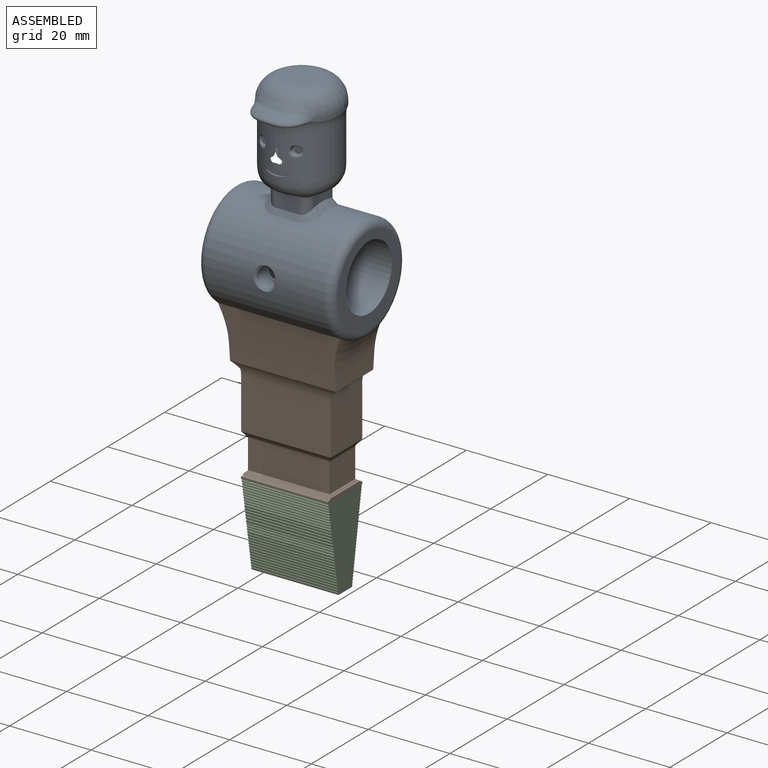
[diagram: assembled view]
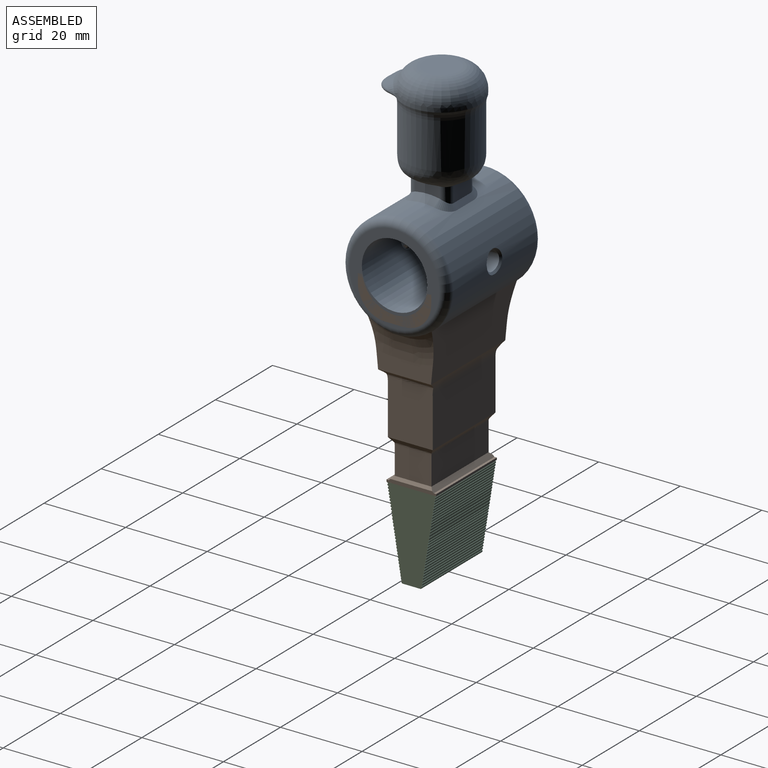
[diagram: assembled view, second angle]
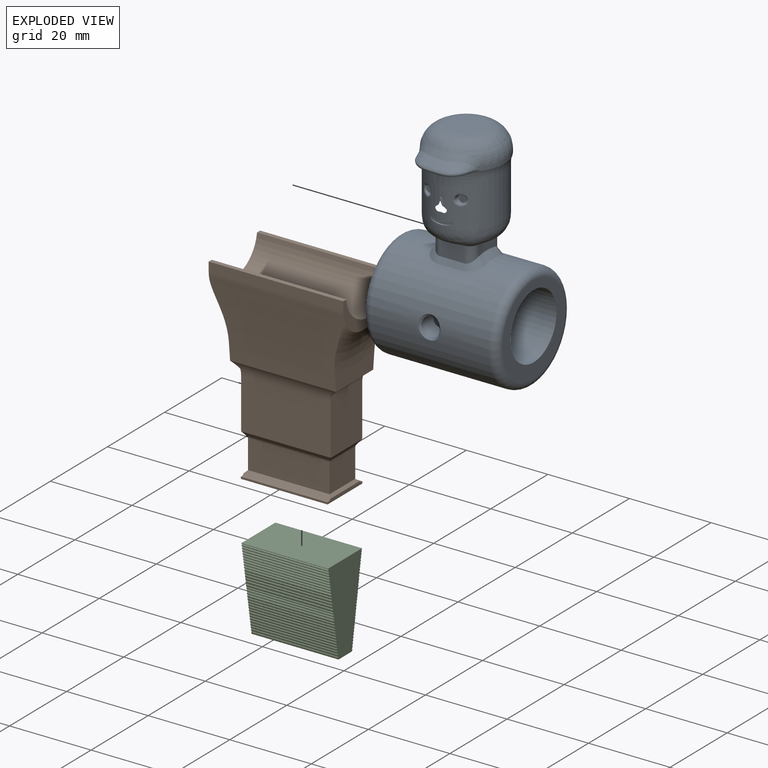
[diagram: exploded view]
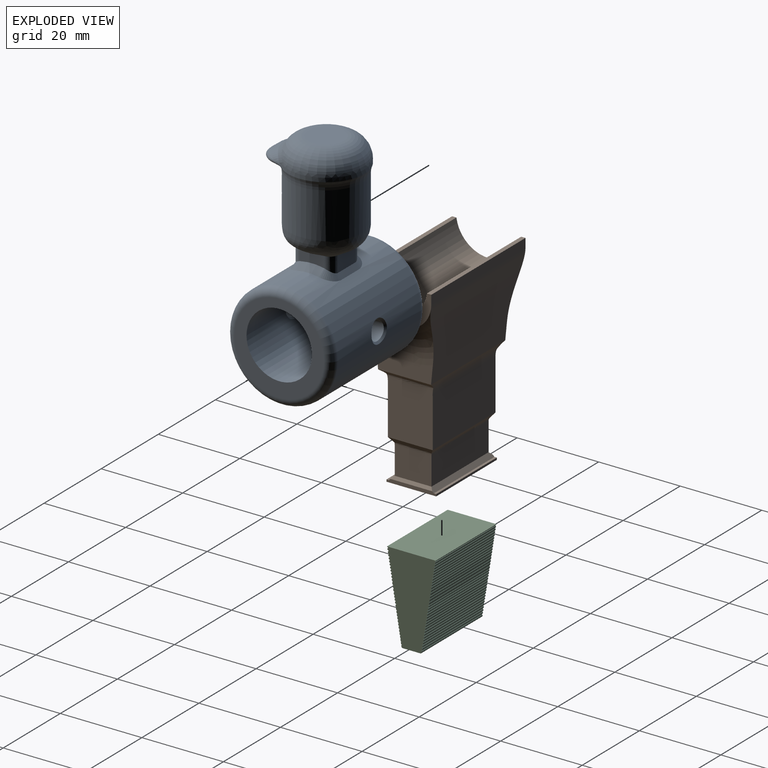
[diagram: exploded view, second angle]
ASSEMBLY  parts=3 mates=2
PART A: 71 faces, bbox 33.4x31.4x55.3 mm
  f0: cylinder r=8.96mm len=17.92mm, axis (0,0,-1), area 606.5mm2, adj f27,f28,f31,f32,f34,f45,f46,f47
  f1: cylinder r=9.37mm len=18.74mm, axis (0,0,1), area 40.8mm2, adj f2,f34,f36,f38
  f2: torus R=4.37mm, axis (0,0,1), area 336.3mm2, adj f1,f11,f37
  f3: plane 6.36x3.08mm, normal (-1,0,0), area 15.1mm2, adj f7,f10,f23,f31
  f4: plane 6.36x4.31mm, normal (0,-1,0), area 23.7mm2, adj f7,f8,f19,f32
  f5: plane 6.36x3.08mm, normal (1,0,0), area 15.1mm2, adj f8,f9,f20,f28
  f6: plane 6.36x4.31mm, normal (0,1,0), area 23.7mm2, adj f9,f10,f24,f27
  f7: cylinder r=2mm len=3.95mm, axis (0,0,1), area 10.5mm2, adj f3,f4,f21,f33
  f8: cylinder r=2mm len=3.95mm, axis (0,0,-1), area 10.5mm2, adj f4,f5,f18,f30
  f9: cylinder r=2mm len=3.95mm, axis (0,0,1), area 10.5mm2, adj f5,f6,f22,f26
  f10: cylinder r=2mm len=3.95mm, axis (0,0,-1), area 10.5mm2, adj f3,f6,f25,f29
  f11: plane 8.74x8.74mm, normal (0,0,1), area 60mm2, adj f2
  f12: plane 12.12x4.09mm, normal (0,0,-1), area 21.9mm2, adj f35,f59,f60,f61
  f13: bspline ~13.72x5.26mm, area 9.7mm2, adj f37,f60
  f14: cylinder r=13mm len=29mm, axis (1,0,0), area 2189.6mm2, adj f18,f19,f20,f21,f22,f23,f24,f25
  f15: plane 22x22mm, normal (1,0,0), area 177.8mm2, adj f17,f39
  f16: plane 22x22mm, normal (-1,0,0), area 177.8mm2, adj f17,f40
  f17: cylinder r=8.02mm len=33mm, axis (1,0,0), area 1620.8mm2, adj f15,f16,f68,f70
  f18: bspline ~3.5x3.14mm, area 7.9mm2, adj f8,f14,f19,f20
  f19: plane 6x1.34mm, normal (0,-0.85,0.53), area 9.5mm2, adj f4,f14,f18,f21
  f20: cone r=14.5mm half-angle=45deg, axis (-1,0,0), area 12.2mm2, adj f5,f14,f18,f22
  f21: bspline ~3.5x3.14mm, area 7.9mm2, adj f7,f14,f19,f23
  f22: bspline ~3.5x3.14mm, area 7.9mm2, adj f9,f14,f20,f24
  f23: cone r=13mm half-angle=45deg, axis (1,0,0), area 12.2mm2, adj f3,f14,f21,f25
  f24: plane 6x1.34mm, normal (0,0.85,0.53), area 9.5mm2, adj f6,f14,f22,f25
  f25: bspline ~3.5x3.14mm, area 7.9mm2, adj f10,f14,f23,f24
  f26: bspline ~4.49x3.54mm, area 6mm2, adj f9,f27,f28
  f27: bspline ~13.58x4.89mm, area 70.2mm2, adj f0,f6,f26,f29
  f28: bspline ~13.58x4.89mm, area 70.2mm2, adj f0,f5,f26,f30
  f29: bspline ~4.49x3.54mm, area 6mm2, adj f10,f27,f31
  f30: bspline ~4.49x3.54mm, area 6mm2, adj f8,f28,f32
  f31: bspline ~13.58x4.89mm, area 70.2mm2, adj f0,f3,f29,f33
  f32: bspline ~13.58x4.89mm, area 70.2mm2, adj f0,f4,f30,f33
  f33: bspline ~4.49x3.54mm, area 6mm2, adj f7,f31,f32
  f34: torus R=13.96mm, axis (0,0,1), area 116.3mm2, adj f0,f1,f35,f56,f57,f63,f64
  f35: torus R=10mm, axis (0,0,1), area 8.7mm2, adj f12,f34,f58,f62
  f36: bspline ~2.74x2mm, area 0.6mm2, adj f1,f37,f56
  f37: bspline ~15.52x6.37mm, area 55.1mm2, adj f2,f13,f36,f38,f57,f58,f59,f61
  f38: bspline ~2.65x2.08mm, area 0.6mm2, adj f1,f37,f64
  f39: torus R=11mm, axis (-1,0,0), area 242.3mm2, adj f14,f15
  f40: torus R=11mm, axis (-1,0,0), area 242.3mm2, adj f14,f16
  f41: cylinder r=1mm len=2mm, axis (0,-1,0), area 0mm2, adj f42,f45
  f42: plane 2.08x2.08mm, normal (0,-1,0), area 3.1mm2, adj f41,f46
  f43: cylinder r=1mm len=2mm, axis (0,-1,0), area 0mm2, adj f44,f47
  f44: plane 2.08x2.08mm, normal (0,-1,0), area 3.1mm2, adj f43,f48
  f45: bspline ~3x2.44mm, area 4.4mm2, adj f0,f41,f46
  f46: bspline ~2.53x1.1mm, area 1.8mm2, adj f0,f42,f45
  f47: bspline ~3x2.44mm, area 4.4mm2, adj f0,f43,f48
  f48: bspline ~2.53x1.1mm, area 1.8mm2, adj f0,f44,f47
  f49: revolved ~2.84x2.84mm, area 10.2mm2, adj f0,f53,f54,f55
  f50: extruded ~5.67x0.36mm, area 0mm2, adj f0,f52
  f51: extruded ~5.67x0.58mm, area 0mm2, adj f0,f52
  f52: plane 5.73x1.18mm, normal (0,-1,0), area 4mm2, adj f0,f50,f51
  f53: plane 1.26x0.73mm, normal (0,-1,0), area 0.3mm2, adj f49,f54,f55
  f54: bspline ~2.01x0.86mm, area 0.5mm2, adj f0,f49,f53,f55
  f55: bspline ~2.1x0.93mm, area 0.6mm2, adj f0,f49,f53,f54
  f56: bspline ~1.55x1.14mm, area 0.3mm2, adj f34,f36,f57
  f57: bspline ~0.68x0.62mm, area 0.3mm2, adj f34,f37,f56,f58
  f58: bspline ~2.33x1.18mm, area 1.2mm2, adj f35,f37,f57,f59
  f59: bspline ~2.55x1.39mm, area 0.8mm2, adj f12,f37,f58,f60
  f60: bspline ~14.34x5.48mm, area 18mm2, adj f12,f13,f59,f61
  f61: bspline ~2.15x1.43mm, area 0.7mm2, adj f12,f37,f60,f62
  f62: bspline ~2.48x1.31mm, area 1.3mm2, adj f35,f37,f61,f63
  f63: bspline ~0.84x0.84mm, area 0.3mm2, adj f34,f37,f62,f64
  f64: bspline ~1.37x1.04mm, area 0.3mm2, adj f34,f38,f63
  f65: cylinder r=2.25mm len=4.5mm, axis (0,-1,0), area 61.3mm2, adj f67,f68
  f66: cylinder r=2.25mm len=4.5mm, axis (0,-1,0), area 59.2mm2, adj f69,f70
  f67: bspline ~5.59x5.4mm, area 10.6mm2, adj f14,f65
  f68: bspline ~5.4x5.11mm, area 9mm2, adj f17,f65
  f69: bspline ~5.59x5.4mm, area 10.6mm2, adj f14,f66
  f70: bspline ~5.81x5.37mm, area 13.5mm2, adj f17,f66
PART B: 46 faces, bbox 34.2x60x47.8 mm
  f0: plane 18x8.96mm, normal (-1,0,0), area 58.6mm2, adj f1,f3,f4,f34,f35,f41,f42,f43
  f1: plane 33x2.2mm, normal (0,-1,0), area 72.6mm2, adj f0,f2,f34,f45
  f2: plane 18x8.96mm, normal (1,0,0), area 58.6mm2, adj f1,f3,f4,f34,f35,f38,f39,f40
  f3: plane 33x2.2mm, normal (0,1,0), area 72.6mm2, adj f0,f2,f35,f44
  f4: cylinder r=8.02mm len=33mm, axis (1,0,0), area 757mm2, adj f0,f2,f44,f45
  f5: plane 21.25x0.6mm, normal (0,0,1), area 12.8mm2, adj f23,f24,f26,f30
  f6: plane 13.89x4.47mm, normal (-1,0,0), area 52.4mm2, adj f19,f36,f37,f41,f42,f43
  f7: plane 13.89x4.47mm, normal (1,0,0), area 52.4mm2, adj f18,f36,f37,f38,f39,f40
  f8: plane 22.17x12.67mm, normal (0,1,0), area 275.4mm2, adj f9,f11,f17,f18,f19,f33
  f9: plane 11.52x11mm, normal (-1,0,0), area 126.7mm2, adj f8,f10,f19,f21
  f10: plane 22.17x12.67mm, normal (0,-1,0), area 275.4mm2, adj f9,f11,f16,f18,f19,f32
  f11: plane 11.52x11mm, normal (1,0,0), area 126.7mm2, adj f8,f10,f18,f20
  f12: plane 20x5.71mm, normal (0,1,0), area 114.1mm2, adj f13,f15,f17,f30
  f13: plane 9x5.71mm, normal (-1,0,0), area 51.3mm2, adj f12,f14,f21,f31
  f14: plane 20x5.71mm, normal (0,-1,0), area 114.1mm2, adj f13,f15,f16,f29
  f15: plane 9x5.71mm, normal (1,0,0), area 51.3mm2, adj f12,f14,f20,f28
  f16: bspline ~22x3mm, area 67.4mm2, adj f10,f14,f20,f21
  f17: bspline ~22x3mm, area 67.3mm2, adj f8,f12,f20,f21
  f18: bspline ~13.16x4mm, area 57.1mm2, adj f7,f8,f10,f11,f32,f33
  f19: bspline ~13.16x4mm, area 57.1mm2, adj f6,f8,f9,f10,f32,f33
  f20: bspline ~12.1x3mm, area 32.8mm2, adj f11,f15,f16,f17
  f21: bspline ~12.1x3mm, area 32.9mm2, adj f9,f13,f16,f17
  f22: plane 21.25x0.6mm, normal (0,0,1), area 12.8mm2, adj f24,f25,f26,f29
  f23: plane 21.25x0.5mm, normal (0,1,0), area 10.6mm2, adj f5,f24,f26,f27
  f24: plane 12.2x0.88mm, normal (-1,0,0), area 10.1mm2, adj f5,f22,f23,f25,f27,f29,f30,f31
  f25: plane 21.25x0.5mm, normal (0,-1,0), area 10.6mm2, adj f22,f24,f26,f27
  f26: plane 12.2x0.88mm, normal (1,0,0), area 10.1mm2, adj f5,f22,f23,f25,f27,f28,f29,f30
  f27: plane 21.25x12.2mm, normal (0,0,-1), area 259.3mm2, adj f23,f24,f25,f26
  f28: plane 10.25x0.63mm, normal (0.71,0,0.71), area 8.5mm2, adj f15,f26,f29,f30
  f29: plane 21.25x1mm, normal (0,-0.71,0.71), area 29.5mm2, adj f14,f22,f24,f26,f28,f31
  f30: plane 21.25x1mm, normal (0,0.71,0.71), area 29.5mm2, adj f5,f12,f24,f26,f28,f31
  f31: plane 10.25x0.63mm, normal (-0.71,0,0.71), area 8.5mm2, adj f13,f24,f29,f30
  f32: cylinder r=5mm len=26mm, axis (1,0,0), area 77.2mm2, adj f10,f18,f19,f37
  f33: cylinder r=5mm len=26mm, axis (1,0,0), area 77.2mm2, adj f8,f18,f19,f36
  f34: cylinder r=6.76mm len=33mm, axis (-1,0,0), area 37.1mm2, adj f0,f1,f2,f37
  f35: cylinder r=6.76mm len=33mm, axis (1,0,0), area 37.1mm2, adj f0,f2,f3,f36
  f36: cylinder r=247.12mm len=33mm, axis (-1,0,0), area 539.6mm2, adj f6,f7,f33,f35,f40,f43
  f37: cylinder r=247.12mm len=33mm, axis (1,0,0), area 539.6mm2, adj f6,f7,f32,f34,f38,f41
  f38: torus R=16.02mm, axis (1,0,0), area 59.3mm2, adj f2,f7,f37,f39
  f39: cylinder r=14mm len=9.26mm, axis (0,1,0), area 45.3mm2, adj f2,f7,f38,f40
  f40: torus R=16.02mm, axis (1,0,0), area 59.3mm2, adj f2,f7,f36,f39
  f41: torus R=16.02mm, axis (1,0,0), area 59.3mm2, adj f0,f6,f37,f42
  f42: cylinder r=14mm len=9.26mm, axis (0,1,0), area 45.3mm2, adj f0,f6,f41,f43
  f43: torus R=16.02mm, axis (1,0,0), area 59.3mm2, adj f0,f6,f36,f42
  f44: plane 33x1.06mm, normal (0,0,1), area 34.8mm2, adj f0,f2,f3,f4
  f45: plane 33x1.06mm, normal (0,0,1), area 34.8mm2, adj f0,f1,f2,f4
PART C: 202 faces, bbox 21.3x11.9x21.5 mm
  f0: plane 21.54x11.94mm, normal (-1,0,0), area 179.2mm2, adj f2,f3,f4,f5,f6,f7,f8,f9
  f1: plane 21.54x11.94mm, normal (1,0,0), area 179.2mm2, adj f2,f3,f4,f5,f6,f7,f8,f9
  f2: plane 21.25x11.94mm, normal (0,0,1), area 253.7mm2, adj f0,f1,f138,f192
  f3: plane 21.25x0.23mm, normal (0,0.47,-0.88), area 5.6mm2, adj f0,f1,f4,f198
  f4: plane 21.25x0.21mm, normal (0,0.77,0.64), area 5.9mm2, adj f0,f1,f3,f167
  f5: plane 21.25x0.19mm, normal (0,0.77,0.64), area 5.3mm2, adj f0,f1,f6,f198
  f6: plane 21.25x0.21mm, normal (0,0.52,-0.85), area 5.3mm2, adj f0,f1,f5,f197
  f7: plane 21.25x0.19mm, normal (0,0.77,0.64), area 5.3mm2, adj f0,f1,f8,f197
  f8: plane 21.25x0.21mm, normal (0,0.52,-0.85), area 5.3mm2, adj f0,f1,f7,f196
  f9: plane 21.25x0.21mm, normal (0,0.77,0.64), area 5.8mm2, adj f0,f1,f10,f196
  f10: plane 21.25x0.23mm, normal (0,0.52,-0.85), area 5.8mm2, adj f0,f1,f9,f195
  f11: plane 21.25x0.19mm, normal (0,0.77,0.64), area 5.2mm2, adj f0,f1,f12,f195
  f12: plane 21.25x0.21mm, normal (0,0.52,-0.85), area 5.2mm2, adj f0,f1,f11,f194
  f13: plane 21.25x0.18mm, normal (0,0.77,0.64), area 5.1mm2, adj f0,f1,f14,f194
  f14: plane 21.25x0.2mm, normal (0,0.52,-0.85), area 5mm2, adj f0,f1,f13,f193
  f15: plane 21.25x0.16mm, normal (0,0.73,0.69), area 4.8mm2, adj f0,f1,f16,f193
  f16: plane 21.25x0.2mm, normal (0,0.52,-0.85), area 5mm2, adj f0,f1,f15,f192
  f17: plane 21.25x0.22mm, normal (0,0.64,-0.77), area 6.2mm2, adj f0,f1,f191,f200
  f18: plane 21.25x0.2mm, normal (0,0.77,0.64), area 5.5mm2, adj f0,f1,f19,f191
  f19: plane 21.25x0.23mm, normal (0,0.64,-0.77), area 6.4mm2, adj f0,f1,f18,f190
  f20: plane 21.25x0.2mm, normal (0,0.77,0.64), area 5.4mm2, adj f0,f1,f21,f190
  f21: plane 21.25x0.23mm, normal (0,0.64,-0.77), area 6.3mm2, adj f0,f1,f20,f189
  f22: plane 21.25x0.19mm, normal (0,0.77,0.64), area 5.3mm2, adj f0,f1,f23,f189
  f23: plane 21.25x0.22mm, normal (0,0.64,-0.77), area 6.1mm2, adj f0,f1,f22,f188
  f24: plane 21.25x0.19mm, normal (0,0.77,0.64), area 5.2mm2, adj f0,f1,f25,f188
  f25: plane 21.25x0.22mm, normal (0,0.64,-0.77), area 6.1mm2, adj f0,f1,f24,f187
  f26: plane 21.25x0.19mm, normal (0,0.77,0.64), area 5.2mm2, adj f0,f1,f27,f187
  f27: plane 21.25x0.22mm, normal (0,0.64,-0.77), area 6mm2, adj f0,f1,f26,f186
  f28: plane 21.25x0.2mm, normal (0,0.77,0.64), area 5.4mm2, adj f0,f1,f29,f186
  f29: plane 21.25x0.23mm, normal (0,0.64,-0.77), area 6.3mm2, adj f0,f1,f28,f185
  f30: plane 21.25x0.18mm, normal (0,0.77,0.64), area 5mm2, adj f0,f1,f31,f185
  f31: plane 21.25x0.21mm, normal (0,0.64,-0.77), area 5.8mm2, adj f0,f1,f30,f184
  f32: plane 21.25x0.2mm, normal (0,0.77,0.64), area 5.5mm2, adj f0,f1,f33,f184
  f33: plane 21.25x0.23mm, normal (0,0.64,-0.77), area 6.4mm2, adj f0,f1,f32,f183
  f34: plane 21.25x0.18mm, normal (0,0.77,0.64), area 4.9mm2, adj f0,f1,f35,f183
  f35: plane 21.25x0.2mm, normal (0,0.64,-0.77), area 5.6mm2, adj f0,f1,f34,f182
  f36: plane 21.25x0.18mm, normal (0,0.77,0.64), area 4.9mm2, adj f0,f1,f37,f182
  f37: plane 21.25x0.2mm, normal (0,0.64,-0.77), area 5.7mm2, adj f0,f1,f36,f181
  f38: plane 21.25x0.18mm, normal (0,0.77,0.64), area 5mm2, adj f0,f1,f39,f181
  f39: plane 21.25x0.21mm, normal (0,0.64,-0.77), area 5.7mm2, adj f0,f1,f38,f180
  f40: plane 21.25x0.17mm, normal (0,0.77,0.64), area 4.8mm2, adj f0,f1,f41,f180
  f41: plane 21.25x0.2mm, normal (0,0.64,-0.77), area 5.6mm2, adj f0,f1,f40,f179
  f42: plane 21.25x0.17mm, normal (0,0.77,0.64), area 4.7mm2, adj f0,f1,f43,f179
  f43: plane 21.25x0.2mm, normal (0,0.64,-0.77), area 5.5mm2, adj f0,f1,f42,f178
  f44: plane 21.25x0.22mm, normal (0,0.77,0.64), area 6.1mm2, adj f0,f1,f45,f178
  f45: plane 21.25x0.24mm, normal (0,0.52,-0.85), area 6.1mm2, adj f0,f1,f44,f177
  f46: plane 21.25x0.22mm, normal (0,0.77,0.64), area 6mm2, adj f0,f1,f47,f177
  f47: plane 21.25x0.24mm, normal (0,0.52,-0.85), area 6mm2, adj f0,f1,f46,f176
  f48: plane 21.25x0.21mm, normal (0,0.77,0.64), area 5.8mm2, adj f0,f1,f49,f176
  f49: plane 21.25x0.23mm, normal (0,0.52,-0.85), area 5.7mm2, adj f0,f1,f48,f175
  f50: plane 21.25x0.16mm, normal (0,0.77,0.64), area 4.5mm2, adj f0,f1,f51,f175
  f51: plane 21.25x0.19mm, normal (0,0.64,-0.77), area 5.2mm2, adj f0,f1,f50,f174
  f52: plane 21.25x0.21mm, normal (0,0.85,0.52), area 5.2mm2, adj f0,f1,f53,f174
  f53: plane 21.25x0.19mm, normal (0,0.64,-0.77), area 5.2mm2, adj f0,f1,f52,f173
  f54: plane 21.25x0.2mm, normal (0,0.85,0.52), area 5mm2, adj f0,f1,f55,f173
  f55: plane 21.25x0.18mm, normal (0,0.64,-0.77), area 5mm2, adj f0,f1,f54,f172
  f56: plane 21.25x0.16mm, normal (0,0.77,0.64), area 4.4mm2, adj f0,f1,f57,f172
  f57: plane 21.25x0.18mm, normal (0,0.64,-0.77), area 5.1mm2, adj f0,f1,f56,f171
  f58: plane 21.25x0.2mm, normal (0,0.85,0.52), area 5mm2, adj f0,f1,f59,f171
  f59: plane 21.25x0.18mm, normal (0,0.64,-0.77), area 4.9mm2, adj f0,f1,f58,f170
  f60: plane 21.25x0.18mm, normal (0,0.64,-0.77), area 4.8mm2, adj f0,f1,f61,f169
  f61: plane 21.25x0.15mm, normal (0,0.77,0.64), area 4.2mm2, adj f0,f1,f60,f170
  f62: plane 21.25x0.2mm, normal (0,0.77,0.64), area 5.5mm2, adj f0,f1,f63,f169
  f63: plane 21.25x0.22mm, normal (0,0.52,-0.85), area 5.5mm2, adj f0,f1,f62,f168
  f64: plane 21.25x0.2mm, normal (0,0.77,0.64), area 5.5mm2, adj f0,f1,f65,f168
  f65: plane 21.25x0.22mm, normal (0,0.52,-0.85), area 5.5mm2, adj f0,f1,f64,f166
  f66: plane 21.25x0.22mm, normal (0,0.52,-0.85), area 5.6mm2, adj f0,f1,f67,f167
  f67: plane 21.25x0.2mm, normal (0,0.77,0.64), area 5.6mm2, adj f0,f1,f66,f166
  f68: plane 21.25x0.25mm, normal (0,-0.77,0.64), area 6.8mm2, adj f0,f1,f69,f165
  f69: plane 21.25x0.27mm, normal (0,-0.52,-0.85), area 6.8mm2, adj f0,f1,f68,f134
  f70: plane 21.25x0.29mm, normal (0,-0.47,-0.88), area 6.9mm2, adj f0,f1,f71,f165
  f71: plane 21.25x0.26mm, normal (0,-0.77,0.64), area 7.2mm2, adj f0,f1,f70,f164
  f72: plane 21.25x0.28mm, normal (0,-0.52,-0.85), area 6.9mm2, adj f0,f1,f73,f164
  f73: plane 21.25x0.25mm, normal (0,-0.77,0.64), area 6.9mm2, adj f0,f1,f72,f163
  f74: plane 21.25x0.27mm, normal (0,-0.52,-0.85), area 6.7mm2, adj f0,f1,f75,f163
  f75: plane 21.25x0.24mm, normal (0,-0.77,0.64), area 6.6mm2, adj f0,f1,f74,f162
  f76: plane 21.25x0.27mm, normal (0,-0.52,-0.85), area 6.6mm2, adj f0,f1,f77,f162
  f77: plane 21.25x0.24mm, normal (0,-0.77,0.64), area 6.6mm2, adj f0,f1,f76,f161
  f78: plane 21.25x0.22mm, normal (0,-0.64,-0.77), area 6mm2, adj f0,f1,f79,f161
  f79: plane 21.25x0.19mm, normal (0,-0.77,0.64), area 5.1mm2, adj f0,f1,f78,f160
  f80: plane 21.25x0.21mm, normal (0,-0.64,-0.77), area 6mm2, adj f0,f1,f81,f160
  f81: plane 21.25x0.24mm, normal (0,-0.85,0.52), area 5.9mm2, adj f0,f1,f80,f159
  f82: plane 21.25x0.22mm, normal (0,-0.64,-0.77), area 6mm2, adj f0,f1,f83,f159
  f83: plane 21.25x0.18mm, normal (0,-0.77,0.64), area 5.1mm2, adj f0,f1,f82,f158
  f84: plane 21.25x0.21mm, normal (0,-0.64,-0.77), area 5.7mm2, adj f0,f1,f85,f158
  f85: plane 21.25x0.23mm, normal (0,-0.85,0.52), area 5.7mm2, adj f0,f1,f84,f157
  f86: plane 21.25x0.21mm, normal (0,-0.64,-0.77), area 5.7mm2, adj f0,f1,f87,f157
  f87: plane 21.25x0.23mm, normal (0,-0.85,0.52), area 5.7mm2, adj f0,f1,f86,f156
  f88: plane 21.25x0.2mm, normal (0,-0.64,-0.77), area 5.6mm2, adj f0,f1,f89,f156
  f89: plane 21.25x0.17mm, normal (0,-0.77,0.64), area 4.8mm2, adj f0,f1,f88,f155
  f90: plane 21.25x0.24mm, normal (0,-0.52,-0.85), area 6mm2, adj f0,f1,f91,f155
  f91: plane 21.25x0.22mm, normal (0,-0.77,0.64), area 6mm2, adj f0,f1,f90,f154
  f92: plane 21.25x0.25mm, normal (0,-0.52,-0.85), area 6.2mm2, adj f0,f1,f93,f154
  f93: plane 21.25x0.22mm, normal (0,-0.77,0.64), area 6.1mm2, adj f0,f1,f92,f153
  f94: plane 21.25x0.25mm, normal (0,-0.52,-0.85), area 6.1mm2, adj f0,f1,f95,f153
  f95: plane 21.25x0.22mm, normal (0,-0.77,0.64), area 6.1mm2, adj f0,f1,f94,f152
  f96: plane 21.25x0.2mm, normal (0,-0.64,-0.77), area 5.4mm2, adj f0,f1,f97,f152
  f97: plane 21.25x0.17mm, normal (0,-0.77,0.64), area 4.6mm2, adj f0,f1,f96,f151
  f98: plane 21.25x0.19mm, normal (0,-0.64,-0.77), area 5.4mm2, adj f0,f1,f99,f151
  f99: plane 21.25x0.17mm, normal (0,-0.77,0.64), area 4.6mm2, adj f0,f1,f98,f150
  f100: plane 21.25x0.19mm, normal (0,-0.64,-0.77), area 5.4mm2, adj f0,f1,f101,f150
  f101: plane 21.25x0.17mm, normal (0,-0.77,0.64), area 4.6mm2, adj f0,f1,f100,f149
  f102: plane 21.25x0.19mm, normal (0,-0.64,-0.77), area 5.2mm2, adj f0,f1,f103,f149
  f103: plane 21.25x0.16mm, normal (0,-0.77,0.64), area 4.5mm2, adj f0,f1,f102,f148
  f104: plane 21.25x0.18mm, normal (0,-0.64,-0.77), area 5mm2, adj f0,f1,f105,f148
  f105: plane 21.25x0.16mm, normal (0,-0.77,0.64), area 4.3mm2, adj f0,f1,f104,f147
  f106: plane 21.25x0.2mm, normal (0,-0.64,-0.77), area 5.6mm2, adj f0,f1,f107,f147
  f107: plane 21.25x0.17mm, normal (0,-0.77,0.64), area 4.8mm2, adj f0,f1,f106,f146
  f108: plane 21.25x0.18mm, normal (0,-0.64,-0.77), area 4.9mm2, adj f0,f1,f109,f146
  f109: plane 21.25x0.15mm, normal (0,-0.77,0.64), area 4.2mm2, adj f0,f1,f108,f145
  f110: plane 21.25x0.19mm, normal (0,-0.64,-0.77), area 5.3mm2, adj f0,f1,f111,f145
  f111: plane 21.25x0.16mm, normal (0,-0.77,0.64), area 4.5mm2, adj f0,f1,f110,f144
  f112: plane 21.25x0.18mm, normal (0,-0.64,-0.77), area 4.9mm2, adj f0,f1,f113,f144
  f113: plane 21.25x0.15mm, normal (0,-0.77,0.64), area 4.2mm2, adj f0,f1,f112,f143
  f114: plane 21.25x0.17mm, normal (0,-0.64,-0.77), area 4.8mm2, adj f0,f1,f115,f143
  f115: plane 21.25x0.15mm, normal (0,-0.77,0.64), area 4.1mm2, adj f0,f1,f114,f142
  f116: plane 21.25x0.17mm, normal (0,-0.64,-0.77), area 4.8mm2, adj f0,f1,f117,f142
  f117: plane 21.25x0.15mm, normal (0,-0.77,0.64), area 4.1mm2, adj f0,f1,f116,f141
  f118: plane 21.25x0.17mm, normal (0,-0.64,-0.77), area 4.7mm2, adj f0,f1,f119,f141
  f119: plane 21.25x0.15mm, normal (0,-0.77,0.64), area 4.1mm2, adj f0,f1,f118,f140
  f120: plane 21.25x0.17mm, normal (0,-0.64,-0.77), area 4.7mm2, adj f0,f1,f121,f140
  f121: plane 21.25x0.15mm, normal (0,-0.77,0.64), area 4mm2, adj f0,f1,f120,f139
  f122: plane 21.25x0.16mm, normal (0,-0.64,-0.77), area 4.5mm2, adj f0,f1,f139,f201
  f123: plane 21.25x0.29mm, normal (0,-0.52,-0.85), area 7.1mm2, adj f0,f1,f124,f138
  f124: plane 21.25x0.23mm, normal (0,-0.73,0.69), area 6.8mm2, adj f0,f1,f123,f137
  f125: plane 21.25x0.28mm, normal (0,-0.52,-0.85), area 7mm2, adj f0,f1,f126,f137
  f126: plane 21.25x0.25mm, normal (0,-0.77,0.64), area 7mm2, adj f0,f1,f125,f136
  f127: plane 21.25x0.28mm, normal (0,-0.52,-0.85), area 7mm2, adj f0,f1,f128,f136
  f128: plane 21.25x0.25mm, normal (0,-0.77,0.64), area 7mm2, adj f0,f1,f127,f135
  f129: plane 21.25x0.3mm, normal (0,-0.52,-0.85), area 7.6mm2, adj f0,f1,f130,f135
  f130: plane 21.25x0.27mm, normal (0,-0.77,0.64), area 7.5mm2, adj f0,f1,f129,f133
  f131: plane 21.25x0.25mm, normal (0,-0.77,0.64), area 6.9mm2, adj f0,f1,f132,f134
  f132: plane 21.25x0.28mm, normal (0,-0.52,-0.85), area 7mm2, adj f0,f1,f131,f133
  f133: plane 21.25x0.23mm, normal (0,-0.99,-0.16), area 4.9mm2, adj f0,f1,f130,f132
  f134: plane 21.25x0.23mm, normal (0,-0.99,-0.16), area 4.9mm2, adj f0,f1,f69,f131
  f135: plane 21.25x0.22mm, normal (0,-0.99,-0.16), area 4.8mm2, adj f0,f1,f128,f129
  f136: plane 21.25x0.22mm, normal (0,-0.99,-0.16), area 4.7mm2, adj f0,f1,f126,f127
  f137: plane 21.25x0.2mm, normal (0,-0.99,-0.16), area 4.4mm2, adj f0,f1,f124,f125
  f138: plane 21.25x0.09mm, normal (0,-0.99,-0.16), area 1.9mm2, adj f0,f1,f2,f123
  f139: plane 21.25x0.38mm, normal (0,-0.99,-0.16), area 8.1mm2, adj f0,f1,f121,f122
  f140: plane 21.25x0.37mm, normal (0,-0.99,-0.16), area 8mm2, adj f0,f1,f119,f120
  f141: plane 21.25x0.37mm, normal (0,-0.99,-0.16), area 7.9mm2, adj f0,f1,f117,f118
  f142: plane 21.25x0.36mm, normal (0,-0.99,-0.16), area 7.8mm2, adj f0,f1,f115,f116
  f143: plane 21.25x0.36mm, normal (0,-0.99,-0.16), area 7.7mm2, adj f0,f1,f113,f114
  f144: plane 21.25x0.36mm, normal (0,-0.99,-0.16), area 7.7mm2, adj f0,f1,f111,f112
  f145: plane 21.25x0.35mm, normal (0,-0.99,-0.16), area 7.6mm2, adj f0,f1,f109,f110
  f146: plane 21.25x0.35mm, normal (0,-0.99,-0.16), area 7.5mm2, adj f0,f1,f107,f108
  f147: plane 21.25x0.34mm, normal (0,-0.99,-0.16), area 7.4mm2, adj f0,f1,f105,f106
  f148: plane 21.25x0.34mm, normal (0,-0.99,-0.16), area 7.3mm2, adj f0,f1,f103,f104
  f149: plane 21.25x0.34mm, normal (0,-0.99,-0.16), area 7.2mm2, adj f0,f1,f101,f102
  f150: plane 21.25x0.33mm, normal (0,-0.99,-0.16), area 7.2mm2, adj f0,f1,f99,f100
  f151: plane 21.25x0.33mm, normal (0,-0.99,-0.16), area 7.1mm2, adj f0,f1,f97,f98
  f152: plane 21.25x0.32mm, normal (0,-0.99,-0.16), area 7mm2, adj f0,f1,f95,f96
  f153: plane 21.25x0.27mm, normal (0,-0.99,-0.16), area 5.9mm2, adj f0,f1,f93,f94
  f154: plane 21.25x0.27mm, normal (0,-0.99,-0.16), area 5.8mm2, adj f0,f1,f91,f92
  f155: plane 21.25x0.27mm, normal (0,-0.99,-0.16), area 5.7mm2, adj f0,f1,f89,f90
  f156: plane 21.25x0.36mm, normal (0,-0.99,-0.16), area 7.6mm2, adj f0,f1,f87,f88
  f157: plane 21.25x0.35mm, normal (0,-0.99,-0.16), area 7.5mm2, adj f0,f1,f85,f86
  f158: plane 21.25x0.3mm, normal (0,-0.99,-0.16), area 6.5mm2, adj f0,f1,f83,f84
  f159: plane 21.25x0.34mm, normal (0,-0.99,-0.16), area 7.3mm2, adj f0,f1,f81,f82
  f160: plane 21.25x0.29mm, normal (0,-0.99,-0.16), area 6.3mm2, adj f0,f1,f79,f80
  f161: plane 21.25x0.29mm, normal (0,-0.99,-0.16), area 6.2mm2, adj f0,f1,f77,f78
  f162: plane 21.25x0.24mm, normal (0,-0.99,-0.16), area 5.2mm2, adj f0,f1,f75,f76
  f163: plane 21.25x0.24mm, normal (0,-0.99,-0.16), area 5.2mm2, adj f0,f1,f73,f74
  f164: plane 21.25x0.24mm, normal (0,-0.99,-0.16), area 5.1mm2, adj f0,f1,f71,f72
  f165: plane 21.25x0.22mm, normal (0,-0.99,-0.16), area 4.7mm2, adj f0,f1,f68,f70
  f166: plane 21.25x0.32mm, normal (0,0.99,-0.16), area 6.8mm2, adj f0,f1,f65,f67
  f167: plane 21.25x0.32mm, normal (0,0.99,-0.16), area 6.9mm2, adj f0,f1,f4,f66
  f168: plane 21.25x0.31mm, normal (0,0.99,-0.16), area 6.7mm2, adj f0,f1,f63,f64
  f169: plane 21.25x0.36mm, normal (0,0.99,-0.16), area 7.8mm2, adj f0,f1,f60,f62
  f170: plane 21.25x0.36mm, normal (0,0.99,-0.16), area 7.7mm2, adj f0,f1,f59,f61
  f171: plane 21.25x0.41mm, normal (0,0.99,-0.16), area 8.7mm2, adj f0,f1,f57,f58
  f172: plane 21.25x0.35mm, normal (0,0.99,-0.16), area 7.5mm2, adj f0,f1,f55,f56
  f173: plane 21.25x0.39mm, normal (0,0.99,-0.16), area 8.5mm2, adj f0,f1,f53,f54
  f174: plane 21.25x0.39mm, normal (0,0.99,-0.16), area 8.4mm2, adj f0,f1,f51,f52
  f175: plane 21.25x0.29mm, normal (0,0.99,-0.16), area 6.1mm2, adj f0,f1,f49,f50
  f176: plane 21.25x0.28mm, normal (0,0.99,-0.16), area 6.1mm2, adj f0,f1,f47,f48
  f177: plane 21.25x0.28mm, normal (0,0.99,-0.16), area 6mm2, adj f0,f1,f45,f46
  f178: plane 21.25x0.32mm, normal (0,0.99,-0.16), area 6.9mm2, adj f0,f1,f43,f44
  f179: plane 21.25x0.32mm, normal (0,0.99,-0.16), area 6.9mm2, adj f0,f1,f41,f42
  f180: plane 21.25x0.31mm, normal (0,0.99,-0.16), area 6.8mm2, adj f0,f1,f39,f40
  f181: plane 21.25x0.31mm, normal (0,0.99,-0.16), area 6.7mm2, adj f0,f1,f37,f38
  f182: plane 21.25x0.31mm, normal (0,0.99,-0.16), area 6.6mm2, adj f0,f1,f35,f36
  f183: plane 21.25x0.3mm, normal (0,0.99,-0.16), area 6.5mm2, adj f0,f1,f33,f34
  f184: plane 21.25x0.3mm, normal (0,0.99,-0.16), area 6.4mm2, adj f0,f1,f31,f32
  f185: plane 21.25x0.29mm, normal (0,0.99,-0.16), area 6.3mm2, adj f0,f1,f29,f30
  f186: plane 21.25x0.29mm, normal (0,0.99,-0.16), area 6.2mm2, adj f0,f1,f27,f28
  f187: plane 21.25x0.29mm, normal (0,0.99,-0.16), area 6.1mm2, adj f0,f1,f25,f26
  f188: plane 21.25x0.28mm, normal (0,0.99,-0.16), area 6.1mm2, adj f0,f1,f23,f24
  f189: plane 21.25x0.28mm, normal (0,0.99,-0.16), area 6mm2, adj f0,f1,f21,f22
  f190: plane 21.25x0.27mm, normal (0,0.99,-0.16), area 5.9mm2, adj f0,f1,f19,f20
  f191: plane 21.25x0.27mm, normal (0,0.99,-0.16), area 5.8mm2, adj f0,f1,f17,f18
  f192: plane 21.25x0.14mm, normal (0,0.99,-0.16), area 3.1mm2, adj f0,f1,f2,f16
  f193: plane 21.25x0.32mm, normal (0,0.99,-0.16), area 6.9mm2, adj f0,f1,f14,f15
  f194: plane 21.25x0.34mm, normal (0,0.99,-0.16), area 7.2mm2, adj f0,f1,f12,f13
  f195: plane 21.25x0.33mm, normal (0,0.99,-0.16), area 7.2mm2, adj f0,f1,f10,f11
  f196: plane 21.25x0.33mm, normal (0,0.99,-0.16), area 7.1mm2, adj f0,f1,f8,f9
  f197: plane 21.25x0.33mm, normal (0,0.99,-0.16), area 7mm2, adj f0,f1,f6,f7
  f198: plane 21.25x0.3mm, normal (0,0.99,-0.16), area 6.6mm2, adj f0,f1,f3,f5
  f199: plane 21.25x4.04mm, normal (0,0,-1), area 85.8mm2, adj f0,f1,f200,f201
  f200: cylinder r=5mm len=21.25mm, axis (-1,0,0), area 5.7mm2, adj f0,f1,f17,f199
  f201: cylinder r=5mm len=21.25mm, axis (1,0,0), area 5.7mm2, adj f0,f1,f122,f199
PLACE A t=(7.63,2.87,31.7)mm
PLACE B t=(7.63,2.87,32.72)mm
PLACE C t=(7.63,2.91,35.97)mm
MATE fastened A.f14 <-> B.f4  axis (1,0,0) through (7.63,2.87,27.82)mm
MATE fastened C.f2 <-> B.f27  axis (0,0,1) through (7.63,2.87,-21.03)mm
